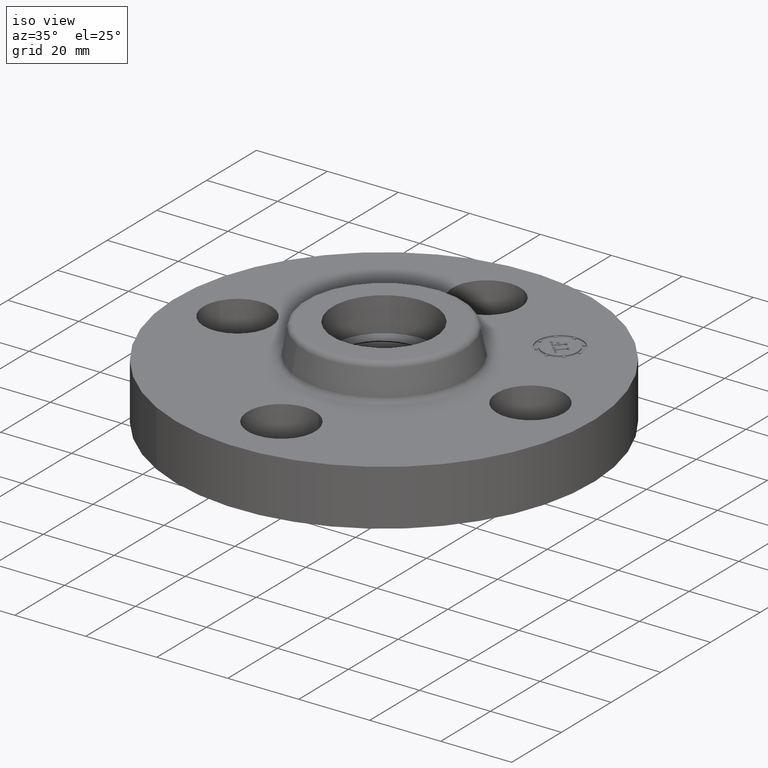
[diagram: clean part render]
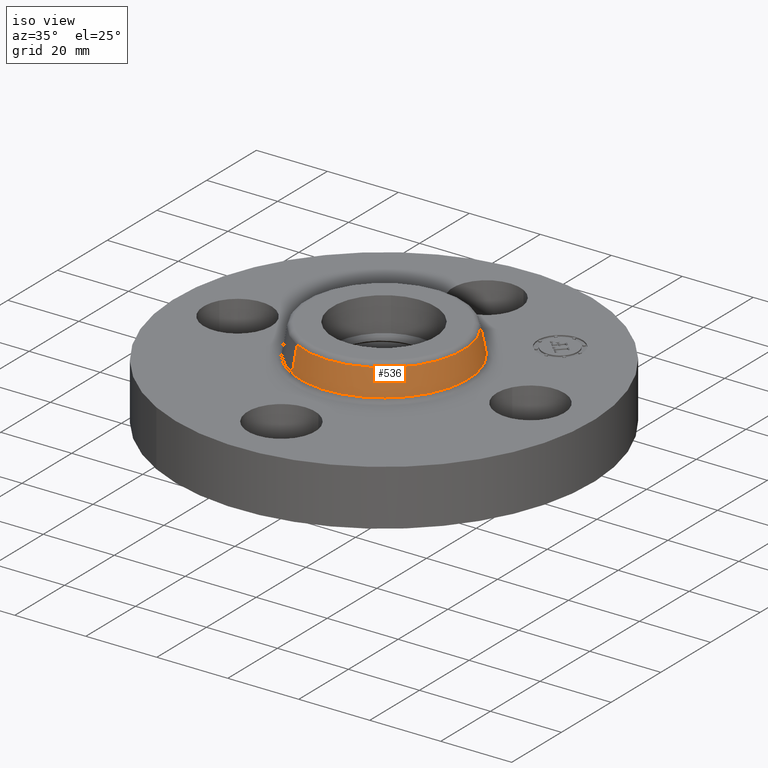
[diagram: same view with one face highlighted and labeled with its STEP entity id]
A machine part, iso view. The second image highlights one B-rep face of the part: STEP entity #536.
In plain terms, the highlighted conical surface has half-angle 10 deg.
Its self-contained STEP definition (entity closure, byte-faithful):
#472=AXIS2_PLACEMENT_3D('Circle Axis2P3D',#470,#471,$) ;
#509=AXIS2_PLACEMENT_3D('Cone Axis2P3D',#506,#507,#508) ;
#520=AXIS2_PLACEMENT_3D('Circle Axis2P3D',#518,#519,$) ;
#467=CARTESIAN_POINT('Vertex',(0.446468634602,0.817255353769,0.669581109343)) ;
#470=CARTESIAN_POINT('Axis2P3D Location',(0.,0.,0.669581109343)) ;
#474=CARTESIAN_POINT('Vertex',(-0.446468634602,-0.817255353769,0.669581109343)) ;
#506=CARTESIAN_POINT('Axis2P3D Location',(0.,0.,0.950418890664)) ;
#511=CARTESIAN_POINT('Line Origine',(0.434598231327,0.795526726323,0.810000000003)) ;
#515=CARTESIAN_POINT('Vertex',(0.422727828052,0.773798098876,0.950418890664)) ;
#518=CARTESIAN_POINT('Axis2P3D Location',(0.,0.,0.950418890664)) ;
#522=CARTESIAN_POINT('Vertex',(-0.422727828052,-0.773798098876,0.950418890664)) ;
#525=CARTESIAN_POINT('Line Origine',(-0.434598231327,-0.795526726323,0.810000000003)) ;
#471=DIRECTION('Axis2P3D Direction',(0.,0.,-0.0393700787402)) ;
#507=DIRECTION('Axis2P3D Direction',(0.,0.,-0.0393700787402)) ;
#508=DIRECTION('Axis2P3D XDirection',(-0.0188750212049,-0.0345504945626,0.)) ;
#512=DIRECTION('Vector Direction',(0.00327761303565,0.00599963041829,-0.03877195878)) ;
#519=DIRECTION('Axis2P3D Direction',(0.,0.,-0.0393700787402)) ;
#526=DIRECTION('Vector Direction',(-0.00327761303565,-0.00599963041829,-0.03877195878)) ;
#513=VECTOR('Line Direction',#512,0.0393700787402) ;
#527=VECTOR('Line Direction',#526,0.0393700787402) ;
#531=ORIENTED_EDGE('',*,*,#476,.F.) ;
#532=ORIENTED_EDGE('',*,*,#517,.T.) ;
#533=ORIENTED_EDGE('',*,*,#524,.T.) ;
#534=ORIENTED_EDGE('',*,*,#529,.F.) ;
#536=ADVANCED_FACE('PartBody',(#535),#510,.T.) ;
#473=CIRCLE('generated circle',#472,0.931257512694) ;
#521=CIRCLE('generated circle',#520,0.881738234644) ;
#510=CONICAL_SURFACE('Cone',#509,0.881738234644,0.174532925199) ;
#476=EDGE_CURVE('',#468,#475,#473,.T.) ;
#517=EDGE_CURVE('',#468,#516,#514,.F.) ;
#524=EDGE_CURVE('',#516,#523,#521,.T.) ;
#529=EDGE_CURVE('',#475,#523,#528,.F.) ;
#530=EDGE_LOOP('',(#531,#532,#533,#534)) ;
#535=FACE_OUTER_BOUND('',#530,.T.) ;
#514=LINE('Line',#511,#513) ;
#528=LINE('Line',#525,#527) ;
#468=VERTEX_POINT('',#467) ;
#475=VERTEX_POINT('',#474) ;
#516=VERTEX_POINT('',#515) ;
#523=VERTEX_POINT('',#522) ;